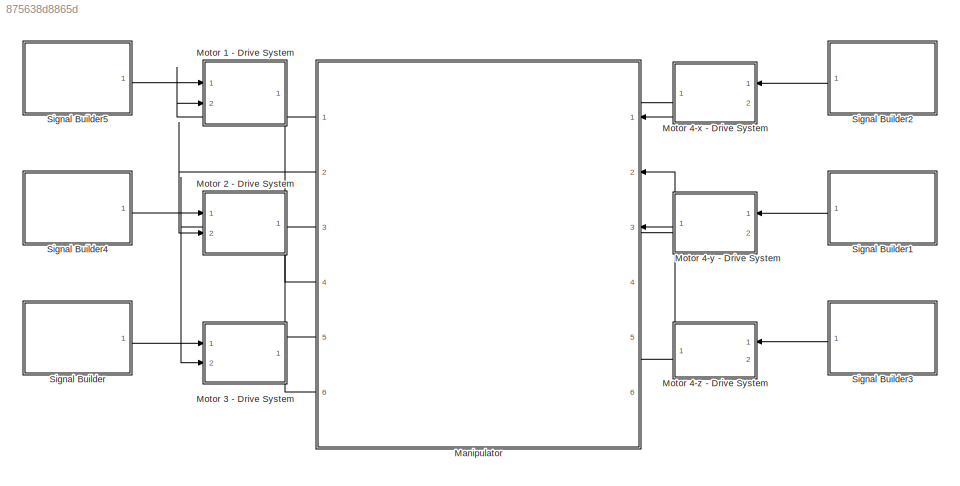
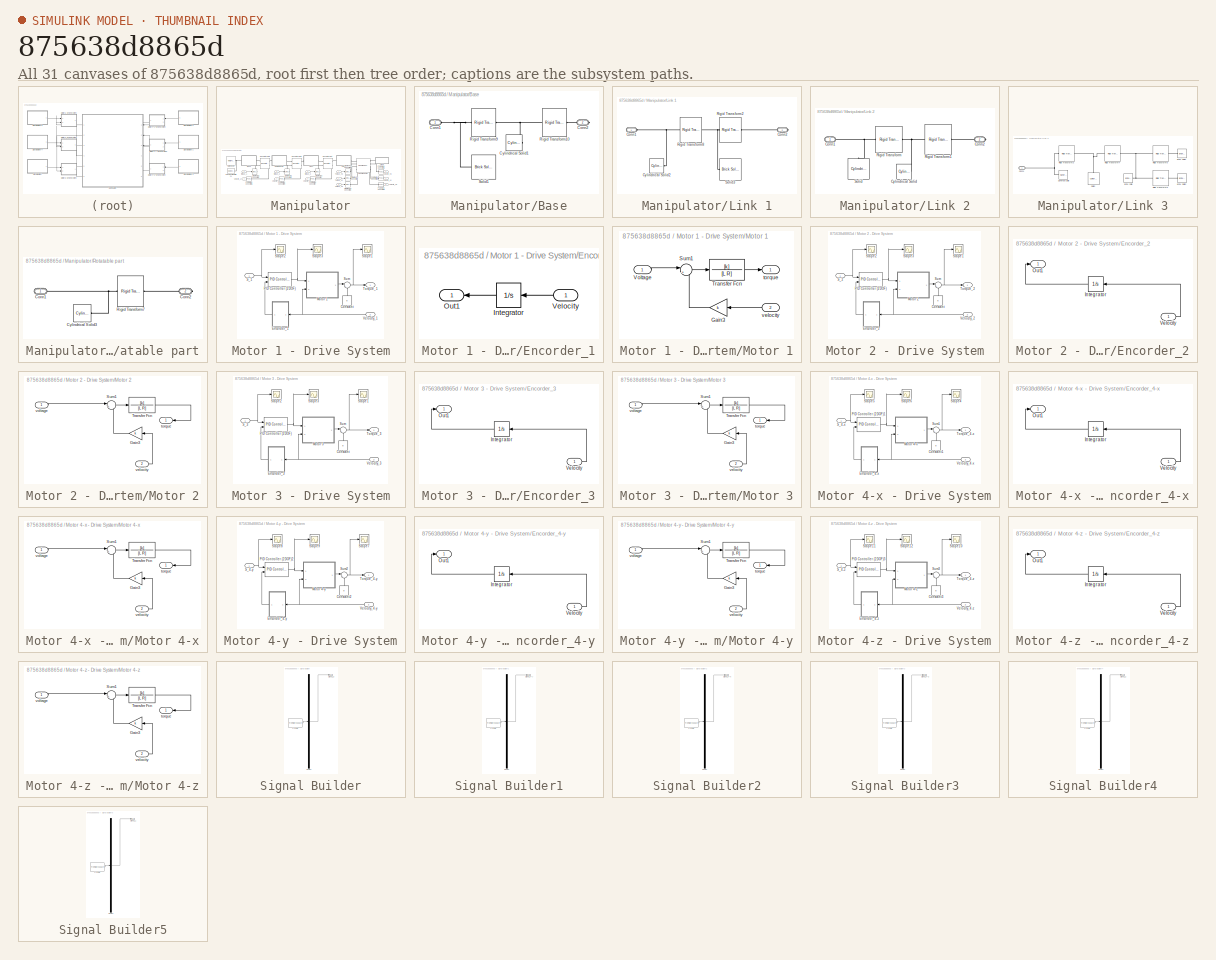
[diagram: thumbnail index - all 31 canvases of the model, root first then tree order]
MODEL slx_875638d8865d
KIND model
CONFIG AbsTol = auto
CONFIG EnableMultiTasking = on
CONFIG FixedStep = auto
CONFIG MaxStep = auto
CONFIG MinStep = auto
CONFIG RelTol = 1e-3
CONFIG SampleTimeConstraint = Unconstrained
CONFIG SolverName = ode45
CONFIG StartTime = 0.0
CONFIG StopTime = 10
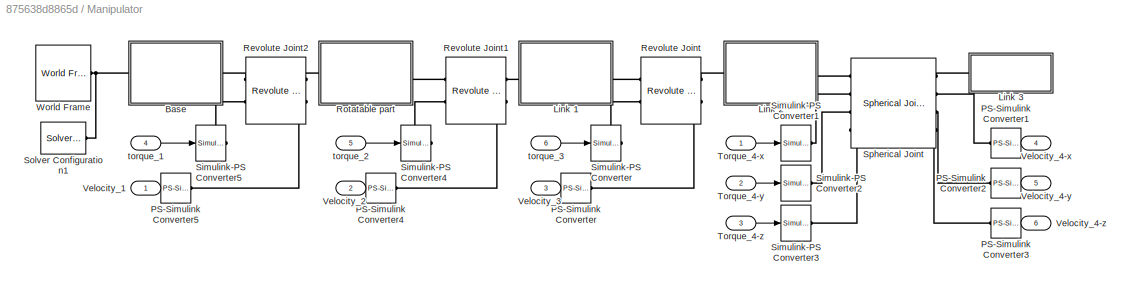
BLOCK [SubSystem] Manipulator
  NameLocation = top
  PortSchema = {"entries":[{"content":{"sides":[{"content":{"connectorIds":["In1","Out4","In2","Out5","In3","Out6"]},"type":"ConnectorPlacement.EquallySpacedRectSide","uuid":"6cf121eb-4254-4362-a991-8289397ada10"},{"content":{"connectorIds":["In4","Out1","In5","Out2","In6","Out3"],"side":"RIGHT"},"type":"ConnectorPlacement.EquallySpacedRectSide","uuid":"0b76b019-2818-4095-9175-a5632ab5a91b"},{"content":{"connect...<+305ch>
  Ports = [6, 6]
  RequestExecContextInheritance = off
BLOCK [SubSystem] Manipulator/Base
  Ports = [0, 0, 0, 0, 0, 1, 1]
  RequestExecContextInheritance = off
BLOCK [PMIOPort] Manipulator/Base/Conn1
  Side = Left
BLOCK [PMIOPort] Manipulator/Base/Conn2
  Port = 2
  Side = Right
BLOCK [Reference] Manipulator/Base/Cylindrical Solid1  REF=sm_lib/Body Elements/Cylindrical Solid
  Ports = [0, 0, 0, 0, 0, 0, 1]
  SourceBlock = sm_lib/Body Elements/Cylindrical Solid
  SourceProductBaseCode = MS
  SourceType = Cylindrical Solid
BLOCK [Reference] Manipulator/Base/Rigid  Transform10  REF=sm_lib/Frames and
Transforms/Rigid
Transform
  Ports = [0, 0, 0, 0, 0, 1, 1]
  SourceBlock = sm_lib/Frames and\nTransforms/Rigid\nTransform
  SourceProductBaseCode = MS
  SourceType = Rigid\nTransform
BLOCK [Reference] Manipulator/Base/Rigid  Transform9  REF=sm_lib/Frames and
Transforms/Rigid
Transform
  Ports = [0, 0, 0, 0, 0, 1, 1]
  SourceBlock = sm_lib/Frames and\nTransforms/Rigid\nTransform
  SourceProductBaseCode = MS
  SourceType = Rigid\nTransform
BLOCK [Reference] Manipulator/Base/Solid1  REF=sm_lib/Body Elements/Brick Solid
  NameLocation = top
  Ports = [0, 0, 0, 0, 0, 0, 1]
  SourceBlock = sm_lib/Body Elements/Brick Solid
  SourceProductBaseCode = MS
  SourceType = Brick Solid
BLOCK [SubSystem] Manipulator/Link 1
  Ports = [0, 0, 0, 0, 0, 1, 1]
  RequestExecContextInheritance = off
BLOCK [PMIOPort] Manipulator/Link 1/Conn1
  Side = Left
BLOCK [PMIOPort] Manipulator/Link 1/Conn2
  Port = 2
  Side = Right
BLOCK [Reference] Manipulator/Link 1/Cylindrical Solid2  REF=sm_lib/Body Elements/Cylindrical Solid
  Ports = [0, 0, 0, 0, 0, 0, 1]
  SourceBlock = sm_lib/Body Elements/Cylindrical Solid
  SourceProductBaseCode = MS
  SourceType = Cylindrical Solid
BLOCK [Reference] Manipulator/Link 1/Rigid  Transform2  REF=sm_lib/Frames and
Transforms/Rigid
Transform
  Ports = [0, 0, 0, 0, 0, 1, 1]
  SourceBlock = sm_lib/Frames and\nTransforms/Rigid\nTransform
  SourceProductBaseCode = MS
  SourceType = Rigid\nTransform
BLOCK [Reference] Manipulator/Link 1/Rigid  Transform8  REF=sm_lib/Frames and
Transforms/Rigid
Transform
  Ports = [0, 0, 0, 0, 0, 1, 1]
  SourceBlock = sm_lib/Frames and\nTransforms/Rigid\nTransform
  SourceProductBaseCode = MS
  SourceType = Rigid\nTransform
BLOCK [Reference] Manipulator/Link 1/Solid3  REF=sm_lib/Body Elements/Brick Solid
  NameLocation = top
  Ports = [0, 0, 0, 0, 0, 0, 1]
  SourceBlock = sm_lib/Body Elements/Brick Solid
  SourceProductBaseCode = MS
  SourceType = Brick Solid
BLOCK [SubSystem] Manipulator/Link 2
  Ports = [0, 0, 0, 0, 0, 1, 1]
  RequestExecContextInheritance = off
BLOCK [PMIOPort] Manipulator/Link 2/Conn1
  Side = Left
BLOCK [PMIOPort] Manipulator/Link 2/Conn2
  Port = 2
  Side = Right
BLOCK [Reference] Manipulator/Link 2/Cylindrical Solid  REF=sm_lib/Body Elements/Cylindrical Solid
  Ports = [0, 0, 0, 0, 0, 0, 1]
  SourceBlock = sm_lib/Body Elements/Cylindrical Solid
  SourceProductBaseCode = MS
  SourceType = Cylindrical Solid
BLOCK [Reference] Manipulator/Link 2/Rigid  Transform  REF=sm_lib/Frames and
Transforms/Rigid
Transform
  Ports = [0, 0, 0, 0, 0, 1, 1]
  SourceBlock = sm_lib/Frames and\nTransforms/Rigid\nTransform
  SourceProductBaseCode = MS
  SourceType = Rigid\nTransform
BLOCK [Reference] Manipulator/Link 2/Rigid  Transform1  REF=sm_lib/Frames and
Transforms/Rigid
Transform
  Ports = [0, 0, 0, 0, 0, 1, 1]
  SourceBlock = sm_lib/Frames and\nTransforms/Rigid\nTransform
  SourceProductBaseCode = MS
  SourceType = Rigid\nTransform
BLOCK [Reference] Manipulator/Link 2/Solid  REF=sm_lib/Body Elements/Cylindrical Solid
  NameLocation = right
  Ports = [0, 0, 0, 0, 0, 0, 1]
  SourceBlock = sm_lib/Body Elements/Cylindrical Solid
  SourceProductBaseCode = MS
  SourceType = Cylindrical Solid
BLOCK [SubSystem] Manipulator/Link 3
  Ports = [0, 0, 0, 0, 0, 1]
  RequestExecContextInheritance = off
BLOCK [Reference] Manipulator/Link 3/Brick Solid  REF=sm_lib/Body Elements/Brick Solid
  Ports = [0, 0, 0, 0, 0, 0, 1]
  SourceBlock = sm_lib/Body Elements/Brick Solid
  SourceProductBaseCode = MS
  SourceType = Brick Solid
BLOCK [Reference] Manipulator/Link 3/Brick Solid1  REF=sm_lib/Body Elements/Brick Solid
  Ports = [0, 0, 0, 0, 0, 0, 1]
  SourceBlock = sm_lib/Body Elements/Brick Solid
  SourceProductBaseCode = MS
  SourceType = Brick Solid
BLOCK [Reference] Manipulator/Link 3/Brick Solid2  REF=sm_lib/Body Elements/Brick Solid
  Ports = [0, 0, 0, 0, 0, 0, 1]
  SourceBlock = sm_lib/Body Elements/Brick Solid
  SourceProductBaseCode = MS
  SourceType = Brick Solid
BLOCK [PMIOPort] Manipulator/Link 3/Conn1
  Side = Left
BLOCK [Reference] Manipulator/Link 3/Rigid  Transform3  REF=sm_lib/Frames and
Transforms/Rigid
Transform
  Ports = [0, 0, 0, 0, 0, 1, 1]
  SourceBlock = sm_lib/Frames and\nTransforms/Rigid\nTransform
  SourceProductBaseCode = MS
  SourceType = Rigid\nTransform
BLOCK [Reference] Manipulator/Link 3/Rigid  Transform4  REF=sm_lib/Frames and
Transforms/Rigid
Transform
  Ports = [0, 0, 0, 0, 0, 1, 1]
  SourceBlock = sm_lib/Frames and\nTransforms/Rigid\nTransform
  SourceProductBaseCode = MS
  SourceType = Rigid\nTransform
BLOCK [Reference] Manipulator/Link 3/Rigid  Transform5  REF=sm_lib/Frames and
Transforms/Rigid
Transform
  Ports = [0, 0, 0, 0, 0, 1, 1]
  SourceBlock = sm_lib/Frames and\nTransforms/Rigid\nTransform
  SourceProductBaseCode = MS
  SourceType = Rigid\nTransform
BLOCK [Reference] Manipulator/Link 3/Rigid  Transform6  REF=sm_lib/Frames and
Transforms/Rigid
Transform
  Ports = [0, 0, 0, 0, 0, 1, 1]
  SourceBlock = sm_lib/Frames and\nTransforms/Rigid\nTransform
  SourceProductBaseCode = MS
  SourceType = Rigid\nTransform
BLOCK [Reference] Manipulator/Link 3/Solid2  REF=sm_lib/Body Elements/Cylindrical Solid
  NameLocation = right
  Ports = [0, 0, 0, 0, 0, 0, 1]
  SourceBlock = sm_lib/Body Elements/Cylindrical Solid
  SourceProductBaseCode = MS
  SourceType = Cylindrical Solid
BLOCK [Reference] Manipulator/Link 3/Spherical Solid  REF=sm_lib/Body Elements/Spherical Solid
  Ports = [0, 0, 0, 0, 0, 0, 1]
  SourceBlock = sm_lib/Body Elements/Spherical Solid
  SourceProductBaseCode = MS
  SourceType = Spherical Solid
BLOCK [Reference] Manipulator/PS-Simulink Converter  REF=nesl_utility/PS-Simulink
Converter
  Ports = [0, 1, 0, 0, 0, 1]
  SourceBlock = nesl_utility/PS-Simulink\nConverter
  SourceProductBaseCode = PW,SS
  SourceType = PS-Simulink\nConverter
BLOCK [Reference] Manipulator/PS-Simulink Converter1  REF=nesl_utility/PS-Simulink
Converter
  Ports = [0, 1, 0, 0, 0, 1]
  SourceBlock = nesl_utility/PS-Simulink\nConverter
  SourceProductBaseCode = PW,SS
  SourceType = PS-Simulink\nConverter
BLOCK [Reference] Manipulator/PS-Simulink Converter2  REF=nesl_utility/PS-Simulink
Converter
  Ports = [0, 1, 0, 0, 0, 1]
  SourceBlock = nesl_utility/PS-Simulink\nConverter
  SourceProductBaseCode = PW,SS
  SourceType = PS-Simulink\nConverter
BLOCK [Reference] Manipulator/PS-Simulink Converter3  REF=nesl_utility/PS-Simulink
Converter
  Ports = [0, 1, 0, 0, 0, 1]
  SourceBlock = nesl_utility/PS-Simulink\nConverter
  SourceProductBaseCode = PW,SS
  SourceType = PS-Simulink\nConverter
BLOCK [Reference] Manipulator/PS-Simulink Converter4  REF=nesl_utility/PS-Simulink
Converter
  Ports = [0, 1, 0, 0, 0, 1]
  SourceBlock = nesl_utility/PS-Simulink\nConverter
  SourceProductBaseCode = PW,SS
  SourceType = PS-Simulink\nConverter
BLOCK [Reference] Manipulator/PS-Simulink Converter5  REF=nesl_utility/PS-Simulink
Converter
  Ports = [0, 1, 0, 0, 0, 1]
  SourceBlock = nesl_utility/PS-Simulink\nConverter
  SourceProductBaseCode = PW,SS
  SourceType = PS-Simulink\nConverter
BLOCK [Reference] Manipulator/Revolute Joint  REF=sm_lib/Joints/Revolute Joint
  Ports = [0, 0, 0, 0, 0, 2, 2]
  SourceBlock = sm_lib/Joints/Revolute Joint
  SourceProductBaseCode = MS
  SourceType = Revolute Joint
BLOCK [Reference] Manipulator/Revolute Joint1  REF=sm_lib/Joints/Revolute Joint
  Ports = [0, 0, 0, 0, 0, 2, 2]
  SourceBlock = sm_lib/Joints/Revolute Joint
  SourceProductBaseCode = MS
  SourceType = Revolute Joint
BLOCK [Reference] Manipulator/Revolute Joint2  REF=sm_lib/Joints/Revolute Joint
  Ports = [0, 0, 0, 0, 0, 2, 2]
  SourceBlock = sm_lib/Joints/Revolute Joint
  SourceProductBaseCode = MS
  SourceType = Revolute Joint
BLOCK [SubSystem] Manipulator/Rotatable part
  Ports = [0, 0, 0, 0, 0, 1, 1]
  RequestExecContextInheritance = off
BLOCK [PMIOPort] Manipulator/Rotatable part/Conn1
  Side = Left
BLOCK [PMIOPort] Manipulator/Rotatable part/Conn2
  Port = 2
  Side = Right
BLOCK [Reference] Manipulator/Rotatable part/Cylindrical Solid3  REF=sm_lib/Body Elements/Cylindrical Solid
  Ports = [0, 0, 0, 0, 0, 0, 1]
  SourceBlock = sm_lib/Body Elements/Cylindrical Solid
  SourceProductBaseCode = MS
  SourceType = Cylindrical Solid
BLOCK [Reference] Manipulator/Rotatable part/Rigid  Transform7  REF=sm_lib/Frames and
Transforms/Rigid
Transform
  Ports = [0, 0, 0, 0, 0, 1, 1]
  SourceBlock = sm_lib/Frames and\nTransforms/Rigid\nTransform
  SourceProductBaseCode = MS
  SourceType = Rigid\nTransform
BLOCK [Reference] Manipulator/Simulink-PS Converter  REF=nesl_utility/Simulink-PS
Converter
  Ports = [1, 0, 0, 0, 0, 0, 1]
  SourceBlock = nesl_utility/Simulink-PS\nConverter
  SourceProductBaseCode = PW,SS
  SourceType = Simulink-PS\nConverter
BLOCK [Reference] Manipulator/Simulink-PS Converter1  REF=nesl_utility/Simulink-PS
Converter
  Ports = [1, 0, 0, 0, 0, 0, 1]
  SourceBlock = nesl_utility/Simulink-PS\nConverter
  SourceProductBaseCode = PW,SS
  SourceType = Simulink-PS\nConverter
BLOCK [Reference] Manipulator/Simulink-PS Converter2  REF=nesl_utility/Simulink-PS
Converter
  Ports = [1, 0, 0, 0, 0, 0, 1]
  SourceBlock = nesl_utility/Simulink-PS\nConverter
  SourceProductBaseCode = PW,SS
  SourceType = Simulink-PS\nConverter
BLOCK [Reference] Manipulator/Simulink-PS Converter3  REF=nesl_utility/Simulink-PS
Converter
  Ports = [1, 0, 0, 0, 0, 0, 1]
  SourceBlock = nesl_utility/Simulink-PS\nConverter
  SourceProductBaseCode = PW,SS
  SourceType = Simulink-PS\nConverter
BLOCK [Reference] Manipulator/Simulink-PS Converter4  REF=nesl_utility/Simulink-PS
Converter
  Ports = [1, 0, 0, 0, 0, 0, 1]
  SourceBlock = nesl_utility/Simulink-PS\nConverter
  SourceProductBaseCode = PW,SS
  SourceType = Simulink-PS\nConverter
BLOCK [Reference] Manipulator/Simulink-PS Converter5  REF=nesl_utility/Simulink-PS
Converter
  Ports = [1, 0, 0, 0, 0, 0, 1]
  SourceBlock = nesl_utility/Simulink-PS\nConverter
  SourceProductBaseCode = PW,SS
  SourceType = Simulink-PS\nConverter
BLOCK [Reference] Manipulator/Solver Configuration1  REF=nesl_utility/Solver
Configuration
  Ports = [0, 0, 0, 0, 0, 0, 1]
  SourceBlock = nesl_utility/Solver\nConfiguration
  SourceProductBaseCode = PW,SS
  SourceType = Solver\nConfiguration
BLOCK [Reference] Manipulator/Spherical Joint  REF=sm_lib/Joints/Spherical
Joint
  Ports = [0, 0, 0, 0, 0, 4, 4]
  SourceBlock = sm_lib/Joints/Spherical\nJoint
  SourceProductBaseCode = MS
  SourceType = Spherical\nJoint
BLOCK [Inport] Manipulator/Torque_4-x
BLOCK [Inport] Manipulator/Torque_4-y
  Port = 2
BLOCK [Inport] Manipulator/Torque_4-z
  Port = 3
BLOCK [Outport] Manipulator/Velocity_1
  VectorParamsAs1DForOutWhenUnconnected = off
BLOCK [Outport] Manipulator/Velocity_2
  Port = 2
  VectorParamsAs1DForOutWhenUnconnected = off
BLOCK [Outport] Manipulator/Velocity_3
  Port = 3
  VectorParamsAs1DForOutWhenUnconnected = off
BLOCK [Outport] Manipulator/Velocity_4-x
  Port = 4
  VectorParamsAs1DForOutWhenUnconnected = off
BLOCK [Outport] Manipulator/Velocity_4-y
  Port = 5
  VectorParamsAs1DForOutWhenUnconnected = off
BLOCK [Outport] Manipulator/Velocity_4-z
  Port = 6
  VectorParamsAs1DForOutWhenUnconnected = off
BLOCK [Reference] Manipulator/World Frame  REF=sm_lib/Frames and
Transforms/World Frame
  Ports = [0, 0, 0, 0, 0, 0, 1]
  SourceBlock = sm_lib/Frames and\nTransforms/World Frame
  SourceProductBaseCode = MS
  SourceType = World Frame
BLOCK [Inport] Manipulator/torque_1
  Port = 4
BLOCK [Inport] Manipulator/torque_2
  Port = 5
BLOCK [Inport] Manipulator/torque_3
  Port = 6
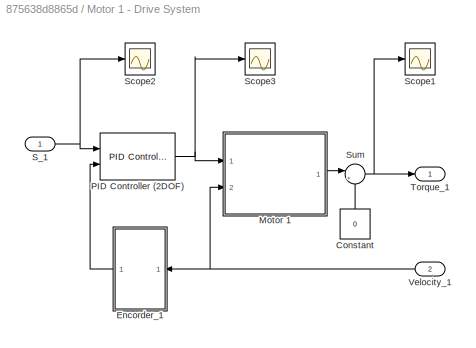
BLOCK [SubSystem] Motor 1 - Drive System
  Ports = [2, 1]
  RequestExecContextInheritance = off
BLOCK [Constant] Motor 1 - Drive System/Constant
  NameLocation = right
  Value = 0
BLOCK [SubSystem] Motor 1 - Drive System/Encorder_1
  Ports = [1, 1]
  RequestExecContextInheritance = off
BLOCK [Integrator] Motor 1 - Drive System/Encorder_1/Integrator
  Ports = [1, 1]
BLOCK [Outport] Motor 1 - Drive System/Encorder_1/Out1
  VectorParamsAs1DForOutWhenUnconnected = off
BLOCK [Inport] Motor 1 - Drive System/Encorder_1/Velocity
BLOCK [SubSystem] Motor 1 - Drive System/Motor 1
  Ports = [2, 1]
  RequestExecContextInheritance = off
BLOCK [Gain] Motor 1 - Drive System/Motor 1/Gain3
  Gain = k
BLOCK [Sum] Motor 1 - Drive System/Motor 1/Sum1
  Inputs = |+-
  Ports = [2, 1]
BLOCK [TransferFcn] Motor 1 - Drive System/Motor 1/Transfer Fcn
  Denominator = [L R]
  Numerator = [k]
BLOCK [Inport] Motor 1 - Drive System/Motor 1/Voltage
BLOCK [Outport] Motor 1 - Drive System/Motor 1/torque
  VectorParamsAs1DForOutWhenUnconnected = off
BLOCK [Inport] Motor 1 - Drive System/Motor 1/velocity
  Port = 2
BLOCK [Reference] Motor 1 - Drive System/PID Controller (2DOF)  REF=pid_lib/PID Controller (2DOF)
  Ports = [2, 1]
  SourceBlock = pid_lib/PID Controller (2DOF)
  SourceProductBaseCode = SL
  SourceType = PID 2dof
BLOCK [Inport] Motor 1 - Drive System/S_1
BLOCK [Scope] Motor 1 - Drive System/Scope1
  Floating = off
  NumInputPorts = 1
  Ports = [1]
  ScopeSpecificationString = Simulink.scopes.TimeScopeBlockCfg('CurrentConfiguration', extmgr.ConfigurationSet(extmgr.Configuration('Core','General UI',true),extmgr.Configuration('Core','Source UI',true),extmgr.Configuration('Sources','WiredSimulink',true,'DataLoggingVariableName','ScopeData1','DataLoggingSaveFormat','StructureWithTime','DataLoggingLimitDataPoints',true,'DataLoggingDecimation','1','DataLoggingDecimateData',tr...<+1699ch>  <repeated x3 — deduplicated; at blocks: Scope1>
BLOCK [Scope] Motor 1 - Drive System/Scope2
  Floating = off
  NumInputPorts = 1
  Ports = [1]
  ScopeSpecificationString = Simulink.scopes.TimeScopeBlockCfg('CurrentConfiguration', extmgr.ConfigurationSet(extmgr.Configuration('Core','General UI',true),extmgr.Configuration('Core','Source UI',true),extmgr.Configuration('Sources','WiredSimulink',true,'DataLoggingSaveFormat','StructureWithTime','DataLoggingLimitDataPoints',true,'DataLoggingDecimation','1','DataLoggingDecimateData',true),extmgr.Configuration('Visuals','Tim...<+1658ch>  <repeated x3 — deduplicated; at blocks: Scope2>
BLOCK [Scope] Motor 1 - Drive System/Scope3
  Floating = off
  NumInputPorts = 1
  Ports = [1]
  ScopeSpecificationString = Simulink.scopes.TimeScopeBlockCfg('CurrentConfiguration', extmgr.ConfigurationSet(extmgr.Configuration('Core','General UI',true),extmgr.Configuration('Core','Source UI',true),extmgr.Configuration('Sources','WiredSimulink',true,'DataLoggingVariableName','ScopeData3','DataLoggingSaveFormat','StructureWithTime','DataLoggingLimitDataPoints',true,'DataLoggingDecimation','1','DataLoggingDecimateData',tr...<+1759ch>
BLOCK [Sum] Motor 1 - Drive System/Sum
  Inputs = |+-
  Ports = [2, 1]
BLOCK [Outport] Motor 1 - Drive System/Torque_1
BLOCK [Inport] Motor 1 - Drive System/Velocity_1
  Port = 2
BLOCK [SubSystem] Motor 2 - Drive System
  Ports = [2, 1]
  RequestExecContextInheritance = off
BLOCK [Constant] Motor 2 - Drive System/Constant
  NameLocation = right
  Value = 0
BLOCK [SubSystem] Motor 2 - Drive System/Encorder_2
  Ports = [1, 1]
  RequestExecContextInheritance = off
BLOCK [Integrator] Motor 2 - Drive System/Encorder_2/Integrator
  Ports = [1, 1]
BLOCK [Outport] Motor 2 - Drive System/Encorder_2/Out1
  VectorParamsAs1DForOutWhenUnconnected = off
BLOCK [Inport] Motor 2 - Drive System/Encorder_2/Velocity
BLOCK [SubSystem] Motor 2 - Drive System/Motor 2
  Ports = [2, 1]
  RequestExecContextInheritance = off
BLOCK [Gain] Motor 2 - Drive System/Motor 2/Gain3
  Gain = k
BLOCK [Sum] Motor 2 - Drive System/Motor 2/Sum1
  Inputs = |+-
  Ports = [2, 1]
BLOCK [TransferFcn] Motor 2 - Drive System/Motor 2/Transfer Fcn
  Denominator = [L R]
  Numerator = [k]
BLOCK [Outport] Motor 2 - Drive System/Motor 2/torque
  VectorParamsAs1DForOutWhenUnconnected = off
BLOCK [Inport] Motor 2 - Drive System/Motor 2/velocity
  Port = 2
BLOCK [Inport] Motor 2 - Drive System/Motor 2/voltage
BLOCK [Reference] Motor 2 - Drive System/PID Controller (2DOF)  REF=pid_lib/PID Controller (2DOF)
  Ports = [2, 1]
  SourceBlock = pid_lib/PID Controller (2DOF)
  SourceProductBaseCode = SL
  SourceType = PID 2dof
BLOCK [Inport] Motor 2 - Drive System/S_2
BLOCK [Scope] Motor 2 - Drive System/Scope1
  Floating = off
  NumInputPorts = 1
  Ports = [1]
BLOCK [Scope] Motor 2 - Drive System/Scope2
  Floating = off
  NumInputPorts = 1
  Ports = [1]
BLOCK [Scope] Motor 2 - Drive System/Scope3
  Floating = off
  NumInputPorts = 1
  Ports = [1]
  ScopeSpecificationString = Simulink.scopes.TimeScopeBlockCfg('CurrentConfiguration', extmgr.ConfigurationSet(extmgr.Configuration('Core','General UI',true),extmgr.Configuration('Core','Source UI',true),extmgr.Configuration('Sources','WiredSimulink',true,'DataLoggingVariableName','ScopeData3','DataLoggingSaveFormat','StructureWithTime','DataLoggingLimitDataPoints',true,'DataLoggingDecimation','1','DataLoggingDecimateData',tr...<+1719ch>
BLOCK [Sum] Motor 2 - Drive System/Sum
  Inputs = |+-
  Ports = [2, 1]
BLOCK [Outport] Motor 2 - Drive System/Torque_2
BLOCK [Inport] Motor 2 - Drive System/Velocity_2
  Port = 2
BLOCK [SubSystem] Motor 3 - Drive System
  Ports = [2, 1]
  RequestExecContextInheritance = off
BLOCK [Constant] Motor 3 - Drive System/Constant
  NameLocation = right
  Value = 0
BLOCK [SubSystem] Motor 3 - Drive System/Encorder_3
  Ports = [1, 1]
  RequestExecContextInheritance = off
BLOCK [Integrator] Motor 3 - Drive System/Encorder_3/Integrator
  Ports = [1, 1]
BLOCK [Outport] Motor 3 - Drive System/Encorder_3/Out1
  VectorParamsAs1DForOutWhenUnconnected = off
BLOCK [Inport] Motor 3 - Drive System/Encorder_3/Velocity
BLOCK [SubSystem] Motor 3 - Drive System/Motor 3
  Ports = [2, 1]
  RequestExecContextInheritance = off
BLOCK [Gain] Motor 3 - Drive System/Motor 3/Gain3
  Gain = k
BLOCK [Sum] Motor 3 - Drive System/Motor 3/Sum1
  Inputs = |+-
  Ports = [2, 1]
BLOCK [TransferFcn] Motor 3 - Drive System/Motor 3/Transfer Fcn
  Denominator = [L R]
  Numerator = [k]
BLOCK [Outport] Motor 3 - Drive System/Motor 3/torque
  VectorParamsAs1DForOutWhenUnconnected = off
BLOCK [Inport] Motor 3 - Drive System/Motor 3/velocity
  Port = 2
BLOCK [Inport] Motor 3 - Drive System/Motor 3/voltage
BLOCK [Reference] Motor 3 - Drive System/PID Controller (2DOF)  REF=pid_lib/PID Controller (2DOF)
  Ports = [2, 1]
  SourceBlock = pid_lib/PID Controller (2DOF)
  SourceProductBaseCode = SL
  SourceType = PID 2dof
BLOCK [Inport] Motor 3 - Drive System/S_3
BLOCK [Scope] Motor 3 - Drive System/Scope1
  Floating = off
  NumInputPorts = 1
  Ports = [1]
BLOCK [Scope] Motor 3 - Drive System/Scope2
  Floating = off
  NumInputPorts = 1
  Ports = [1]
BLOCK [Scope] Motor 3 - Drive System/Scope3
  Floating = off
  NumInputPorts = 1
  Ports = [1]
  ScopeSpecificationString = Simulink.scopes.TimeScopeBlockCfg('CurrentConfiguration', extmgr.ConfigurationSet(extmgr.Configuration('Core','General UI',true),extmgr.Configuration('Core','Source UI',true),extmgr.Configuration('Sources','WiredSimulink',true,'DataLoggingVariableName','ScopeData3','DataLoggingSaveFormat','StructureWithTime','DataLoggingLimitDataPoints',true,'DataLoggingDecimation','1','DataLoggingDecimateData',tr...<+1719ch>
BLOCK [Sum] Motor 3 - Drive System/Sum
  Inputs = |+-
  Ports = [2, 1]
BLOCK [Outport] Motor 3 - Drive System/Torque_3
BLOCK [Inport] Motor 3 - Drive System/Velocity_3
  Port = 2
BLOCK [SubSystem] Motor 4-x - Drive System
  Ports = [2, 1]
  RequestExecContextInheritance = off
BLOCK [Constant] Motor 4-x - Drive System/Constant1
  NameLocation = right
  Value = 0
BLOCK [SubSystem] Motor 4-x - Drive System/Encorder_4-x
  Ports = [1, 1]
  RequestExecContextInheritance = off
BLOCK [Integrator] Motor 4-x - Drive System/Encorder_4-x/Integrator
  Ports = [1, 1]
BLOCK [Outport] Motor 4-x - Drive System/Encorder_4-x/Out1
  VectorParamsAs1DForOutWhenUnconnected = off
BLOCK [Inport] Motor 4-x - Drive System/Encorder_4-x/Velocity
BLOCK [SubSystem] Motor 4-x - Drive System/Motor 4-x
  Ports = [2, 1]
  RequestExecContextInheritance = off
BLOCK [Gain] Motor 4-x - Drive System/Motor 4-x/Gain3
  Gain = k
BLOCK [Sum] Motor 4-x - Drive System/Motor 4-x/Sum1
  Inputs = |+-
  Ports = [2, 1]
BLOCK [TransferFcn] Motor 4-x - Drive System/Motor 4-x/Transfer Fcn
  Denominator = [L R]
  Numerator = [k]
BLOCK [Outport] Motor 4-x - Drive System/Motor 4-x/torque
  VectorParamsAs1DForOutWhenUnconnected = off
BLOCK [Inport] Motor 4-x - Drive System/Motor 4-x/velocity
  Port = 2
BLOCK [Inport] Motor 4-x - Drive System/Motor 4-x/voltage
BLOCK [Reference] Motor 4-x - Drive System/PID Controller (2DOF)1  REF=pid_lib/PID Controller (2DOF)
  Ports = [2, 1]
  SourceBlock = pid_lib/PID Controller (2DOF)
  SourceProductBaseCode = SL
  SourceType = PID 2dof
BLOCK [Inport] Motor 4-x - Drive System/S_4-x
BLOCK [Scope] Motor 4-x - Drive System/Scope4
  Floating = off
  NumInputPorts = 1
  Ports = [1]
  ScopeSpecificationString = Simulink.scopes.TimeScopeBlockCfg('CurrentConfiguration', extmgr.ConfigurationSet(extmgr.Configuration('Core','General UI',true),extmgr.Configuration('Core','Source UI',true),extmgr.Configuration('Sources','WiredSimulink',true,'DataLoggingVariableName','ScopeData1','DataLoggingSaveFormat','StructureWithTime','DataLoggingLimitDataPoints',true,'DataLoggingDecimation','1','DataLoggingDecimateData',tr...<+1679ch>
BLOCK [Scope] Motor 4-x - Drive System/Scope5
  Floating = off
  NumInputPorts = 1
  Ports = [1]
  ScopeSpecificationString = Simulink.scopes.TimeScopeBlockCfg('CurrentConfiguration', extmgr.ConfigurationSet(extmgr.Configuration('Core','General UI',true),extmgr.Configuration('Core','Source UI',true),extmgr.Configuration('Sources','WiredSimulink',true,'DataLoggingSaveFormat','StructureWithTime','DataLoggingLimitDataPoints',true,'DataLoggingDecimation','1','DataLoggingDecimateData',true,'DataLoggingVariableName','ScopeData...<+1686ch>  <repeated x3 — deduplicated; at blocks: Scope5, Scope8, Scope11>
BLOCK [Scope] Motor 4-x - Drive System/Scope6
  Floating = off
  NumInputPorts = 1
  Ports = [1]
  ScopeSpecificationString = Simulink.scopes.TimeScopeBlockCfg('CurrentConfiguration', extmgr.ConfigurationSet(extmgr.Configuration('Core','General UI',true),extmgr.Configuration('Core','Source UI',true),extmgr.Configuration('Sources','WiredSimulink',true,'DataLoggingVariableName','ScopeData3','DataLoggingSaveFormat','StructureWithTime','DataLoggingLimitDataPoints',true,'DataLoggingDecimation','1','DataLoggingDecimateData',tr...<+1697ch>
BLOCK [Sum] Motor 4-x - Drive System/Sum1
  Inputs = |+-
  Ports = [2, 1]
BLOCK [Outport] Motor 4-x - Drive System/Torque_4-x
BLOCK [Inport] Motor 4-x - Drive System/Velocity_4-x
  Port = 2
BLOCK [SubSystem] Motor 4-y - Drive System
  Ports = [2, 1]
  RequestExecContextInheritance = off
BLOCK [Constant] Motor 4-y - Drive System/Constant2
  NameLocation = right
  Value = 0
BLOCK [SubSystem] Motor 4-y - Drive System/Encorder_4-y
  Ports = [1, 1]
  RequestExecContextInheritance = off
BLOCK [Integrator] Motor 4-y - Drive System/Encorder_4-y/Integrator
  Ports = [1, 1]
BLOCK [Outport] Motor 4-y - Drive System/Encorder_4-y/Out1
  VectorParamsAs1DForOutWhenUnconnected = off
BLOCK [Inport] Motor 4-y - Drive System/Encorder_4-y/Velocity
BLOCK [SubSystem] Motor 4-y - Drive System/Motor 4-y
  Ports = [2, 1]
  RequestExecContextInheritance = off
BLOCK [Gain] Motor 4-y - Drive System/Motor 4-y/Gain3
  Gain = k
BLOCK [Sum] Motor 4-y - Drive System/Motor 4-y/Sum1
  Inputs = |+-
  Ports = [2, 1]
BLOCK [TransferFcn] Motor 4-y - Drive System/Motor 4-y/Transfer Fcn
  Denominator = [L R]
  Numerator = [k]
BLOCK [Outport] Motor 4-y - Drive System/Motor 4-y/torque
  VectorParamsAs1DForOutWhenUnconnected = off
BLOCK [Inport] Motor 4-y - Drive System/Motor 4-y/velocity
  Port = 2
BLOCK [Inport] Motor 4-y - Drive System/Motor 4-y/voltage
BLOCK [Reference] Motor 4-y - Drive System/PID Controller (2DOF)2  REF=pid_lib/PID Controller (2DOF)
  Ports = [2, 1]
  SourceBlock = pid_lib/PID Controller (2DOF)
  SourceProductBaseCode = SL
  SourceType = PID 2dof
BLOCK [Inport] Motor 4-y - Drive System/S_4-y
BLOCK [Scope] Motor 4-y - Drive System/Scope7
  Floating = off
  NumInputPorts = 1
  Ports = [1]
  ScopeSpecificationString = Simulink.scopes.TimeScopeBlockCfg('CurrentConfiguration', extmgr.ConfigurationSet(extmgr.Configuration('Core','General UI',true),extmgr.Configuration('Core','Source UI',true),extmgr.Configuration('Sources','WiredSimulink',true,'DataLoggingVariableName','ScopeData4','DataLoggingSaveFormat','StructureWithTime','DataLoggingLimitDataPoints',true,'DataLoggingDecimation','1','DataLoggingDecimateData',tr...<+1679ch>
BLOCK [Scope] Motor 4-y - Drive System/Scope8
  Floating = off
  NumInputPorts = 1
  Ports = [1]
BLOCK [Scope] Motor 4-y - Drive System/Scope9
  Floating = off
  NumInputPorts = 1
  Ports = [1]
  ScopeSpecificationString = Simulink.scopes.TimeScopeBlockCfg('CurrentConfiguration', extmgr.ConfigurationSet(extmgr.Configuration('Core','General UI',true),extmgr.Configuration('Core','Source UI',true),extmgr.Configuration('Sources','WiredSimulink',true,'DataLoggingVariableName','ScopeData6','DataLoggingSaveFormat','StructureWithTime','DataLoggingLimitDataPoints',true,'DataLoggingDecimation','1','DataLoggingDecimateData',tr...<+1697ch>
BLOCK [Sum] Motor 4-y - Drive System/Sum2
  Inputs = |+-
  Ports = [2, 1]
BLOCK [Outport] Motor 4-y - Drive System/Torque_4-y
BLOCK [Inport] Motor 4-y - Drive System/Velocity_4-y
  Port = 2
BLOCK [SubSystem] Motor 4-z - Drive System
  Ports = [2, 1]
  RequestExecContextInheritance = off
BLOCK [Constant] Motor 4-z - Drive System/Constant3
  NameLocation = right
  Value = 0
BLOCK [SubSystem] Motor 4-z - Drive System/Encorder_4-z
  Ports = [1, 1]
  RequestExecContextInheritance = off
BLOCK [Integrator] Motor 4-z - Drive System/Encorder_4-z/Integrator
  Ports = [1, 1]
BLOCK [Outport] Motor 4-z - Drive System/Encorder_4-z/Out1
  VectorParamsAs1DForOutWhenUnconnected = off
BLOCK [Inport] Motor 4-z - Drive System/Encorder_4-z/Velocity
BLOCK [SubSystem] Motor 4-z - Drive System/Motor 4-z
  Ports = [2, 1]
  RequestExecContextInheritance = off
BLOCK [Gain] Motor 4-z - Drive System/Motor 4-z/Gain3
  Gain = k
BLOCK [Sum] Motor 4-z - Drive System/Motor 4-z/Sum1
  Inputs = |+-
  Ports = [2, 1]
BLOCK [TransferFcn] Motor 4-z - Drive System/Motor 4-z/Transfer Fcn
  Denominator = [L R]
  Numerator = [k]
BLOCK [Outport] Motor 4-z - Drive System/Motor 4-z/torque
  VectorParamsAs1DForOutWhenUnconnected = off
BLOCK [Inport] Motor 4-z - Drive System/Motor 4-z/velocity
  Port = 2
BLOCK [Inport] Motor 4-z - Drive System/Motor 4-z/voltage
BLOCK [Reference] Motor 4-z - Drive System/PID Controller (2DOF)3  REF=pid_lib/PID Controller (2DOF)
  Ports = [2, 1]
  SourceBlock = pid_lib/PID Controller (2DOF)
  SourceProductBaseCode = SL
  SourceType = PID 2dof
BLOCK [Inport] Motor 4-z - Drive System/S_4-z
BLOCK [Scope] Motor 4-z - Drive System/Scope10
  Floating = off
  NumInputPorts = 1
  Ports = [1]
  ScopeSpecificationString = Simulink.scopes.TimeScopeBlockCfg('CurrentConfiguration', extmgr.ConfigurationSet(extmgr.Configuration('Core','General UI',true),extmgr.Configuration('Core','Source UI',true),extmgr.Configuration('Sources','WiredSimulink',true,'DataLoggingVariableName','ScopeData7','DataLoggingSaveFormat','StructureWithTime','DataLoggingLimitDataPoints',true,'DataLoggingDecimation','1','DataLoggingDecimateData',tr...<+1679ch>
BLOCK [Scope] Motor 4-z - Drive System/Scope11
  Floating = off
  NumInputPorts = 1
  Ports = [1]
BLOCK [Scope] Motor 4-z - Drive System/Scope12
  Floating = off
  NumInputPorts = 1
  Ports = [1]
  ScopeSpecificationString = Simulink.scopes.TimeScopeBlockCfg('CurrentConfiguration', extmgr.ConfigurationSet(extmgr.Configuration('Core','General UI',true),extmgr.Configuration('Core','Source UI',true),extmgr.Configuration('Sources','WiredSimulink',true,'DataLoggingVariableName','ScopeData9','DataLoggingSaveFormat','StructureWithTime','DataLoggingLimitDataPoints',true,'DataLoggingDecimation','1','DataLoggingDecimateData',tr...<+1697ch>
BLOCK [Sum] Motor 4-z - Drive System/Sum3
  Inputs = |+-
  Ports = [2, 1]
BLOCK [Outport] Motor 4-z - Drive System/Torque_4-z
BLOCK [Inport] Motor 4-z - Drive System/Velocity_4-z
  Port = 2
BLOCK [SubSystem] Signal Builder
  ClipboardFcn = sigbuilder_block('clipboard');
  CloseFcn = sigbuilder_block('close');
  ContinueFcn = sigbuilder_block('continue');
  CopyFcn = sigbuilder_block('copy');
  DeleteFcn = sigbuilder_block('delete');
  LoadFcn = sigbuilder_block('load');
  MaskHideContents = on
  ModelCloseFcn = sigbuilder_block('modelClose');
  NameChangeFcn = sigbuilder_block('namechange');
  OpenFcn = sigbuilder_block('open',[0 0 1024.5 518.25 ]);
  PauseFcn = sigbuilder_block('pause');
  Ports = [0, 1]
  PreSaveFcn = sigbuilder_block('preSave');
  RequestExecContextInheritance = off
  StartFcn = sigbuilder_block('start');
  StopFcn = sigbuilder_block('stop');
  Tag = STV Subsys
BLOCK [Demux] Signal Builder/Demux
  DisplayOption = none
  Outputs = 1
  Ports = [1, 1]
  Tag = STV Demux
BLOCK [FromWorkspace] Signal Builder/FromWs
  Tag = STV FromWs
  VariableName = tuvar
BLOCK [Outport] Signal Builder/Signal_3
  Tag = STV Outport
  VectorParamsAs1DForOutWhenUnconnected = off
BLOCK [SubSystem] Signal Builder1
  ClipboardFcn = sigbuilder_block('clipboard');
  CloseFcn = sigbuilder_block('close');
  ContinueFcn = sigbuilder_block('continue');
  CopyFcn = sigbuilder_block('copy');
  DeleteFcn = sigbuilder_block('delete');
  LoadFcn = sigbuilder_block('load');
  MaskHideContents = on
  ModelCloseFcn = sigbuilder_block('modelClose');
  NameChangeFcn = sigbuilder_block('namechange');
  OpenFcn = sigbuilder_block('open',[0 0 1024.5 518.25 ]);
  PauseFcn = sigbuilder_block('pause');
  Ports = [0, 1]
  PreSaveFcn = sigbuilder_block('preSave');
  RequestExecContextInheritance = off
  StartFcn = sigbuilder_block('start');
  StopFcn = sigbuilder_block('stop');
  Tag = STV Subsys
BLOCK [Demux] Signal Builder1/Demux
  DisplayOption = none
  Outputs = 1
  Ports = [1, 1]
  Tag = STV Demux
BLOCK [FromWorkspace] Signal Builder1/FromWs
  Tag = STV FromWs
  VariableName = tuvar
BLOCK [Outport] Signal Builder1/Signal_4-y
  Tag = STV Outport
  VectorParamsAs1DForOutWhenUnconnected = off
BLOCK [SubSystem] Signal Builder2
  ClipboardFcn = sigbuilder_block('clipboard');
  CloseFcn = sigbuilder_block('close');
  ContinueFcn = sigbuilder_block('continue');
  CopyFcn = sigbuilder_block('copy');
  DeleteFcn = sigbuilder_block('delete');
  LoadFcn = sigbuilder_block('load');
  MaskHideContents = on
  ModelCloseFcn = sigbuilder_block('modelClose');
  NameChangeFcn = sigbuilder_block('namechange');
  OpenFcn = sigbuilder_block('open',[6 0 1012.5 477.75 ]);
  PauseFcn = sigbuilder_block('pause');
  Ports = [0, 1]
  PreSaveFcn = sigbuilder_block('preSave');
  RequestExecContextInheritance = off
  StartFcn = sigbuilder_block('start');
  StopFcn = sigbuilder_block('stop');
  Tag = STV Subsys
BLOCK [Demux] Signal Builder2/Demux
  DisplayOption = none
  Outputs = 1
  Ports = [1, 1]
  Tag = STV Demux
BLOCK [FromWorkspace] Signal Builder2/FromWs
  Tag = STV FromWs
  VariableName = tuvar
BLOCK [Outport] Signal Builder2/Signal_4-x
  Tag = STV Outport
  VectorParamsAs1DForOutWhenUnconnected = off
BLOCK [SubSystem] Signal Builder3
  ClipboardFcn = sigbuilder_block('clipboard');
  CloseFcn = sigbuilder_block('close');
  ContinueFcn = sigbuilder_block('continue');
  CopyFcn = sigbuilder_block('copy');
  DeleteFcn = sigbuilder_block('delete');
  LoadFcn = sigbuilder_block('load');
  MaskHideContents = on
  ModelCloseFcn = sigbuilder_block('modelClose');
  NameChangeFcn = sigbuilder_block('namechange');
  OpenFcn = sigbuilder_block('open',[0 0 1024.5 518.25 ]);
  PauseFcn = sigbuilder_block('pause');
  Ports = [0, 1]
  PreSaveFcn = sigbuilder_block('preSave');
  RequestExecContextInheritance = off
  StartFcn = sigbuilder_block('start');
  StopFcn = sigbuilder_block('stop');
  Tag = STV Subsys
BLOCK [Demux] Signal Builder3/Demux
  DisplayOption = none
  Outputs = 1
  Ports = [1, 1]
  Tag = STV Demux
BLOCK [FromWorkspace] Signal Builder3/FromWs
  Tag = STV FromWs
  VariableName = tuvar
BLOCK [Outport] Signal Builder3/Signal_4-z
  Tag = STV Outport
  VectorParamsAs1DForOutWhenUnconnected = off
BLOCK [SubSystem] Signal Builder4
  ClipboardFcn = sigbuilder_block('clipboard');
  CloseFcn = sigbuilder_block('close');
  ContinueFcn = sigbuilder_block('continue');
  CopyFcn = sigbuilder_block('copy');
  DeleteFcn = sigbuilder_block('delete');
  LoadFcn = sigbuilder_block('load');
  MaskHideContents = on
  ModelCloseFcn = sigbuilder_block('modelClose');
  NameChangeFcn = sigbuilder_block('namechange');
  OpenFcn = sigbuilder_block('open',[18 53.25 1012.5 437.25 ]);
  PauseFcn = sigbuilder_block('pause');
  Ports = [0, 1]
  PreSaveFcn = sigbuilder_block('preSave');
  RequestExecContextInheritance = off
  StartFcn = sigbuilder_block('start');
  StopFcn = sigbuilder_block('stop');
  Tag = STV Subsys
BLOCK [Demux] Signal Builder4/Demux
  DisplayOption = none
  Outputs = 1
  Ports = [1, 1]
  Tag = STV Demux
BLOCK [FromWorkspace] Signal Builder4/FromWs
  Tag = STV FromWs
  VariableName = tuvar
BLOCK [Outport] Signal Builder4/Signal_2
  Tag = STV Outport
  VectorParamsAs1DForOutWhenUnconnected = off
BLOCK [SubSystem] Signal Builder5
  ClipboardFcn = sigbuilder_block('clipboard');
  CloseFcn = sigbuilder_block('close');
  ContinueFcn = sigbuilder_block('continue');
  CopyFcn = sigbuilder_block('copy');
  DeleteFcn = sigbuilder_block('delete');
  LoadFcn = sigbuilder_block('load');
  MaskHideContents = on
  ModelCloseFcn = sigbuilder_block('modelClose');
  NameChangeFcn = sigbuilder_block('namechange');
  OpenFcn = sigbuilder_block('open',[0 0 1024.5 518.25 ]);
  PauseFcn = sigbuilder_block('pause');
  Ports = [0, 1]
  PreSaveFcn = sigbuilder_block('preSave');
  RequestExecContextInheritance = off
  StartFcn = sigbuilder_block('start');
  StopFcn = sigbuilder_block('stop');
  Tag = STV Subsys
BLOCK [Demux] Signal Builder5/Demux
  DisplayOption = none
  Outputs = 1
  Ports = [1, 1]
  Tag = STV Demux
BLOCK [FromWorkspace] Signal Builder5/FromWs
  Tag = STV FromWs
  VariableName = tuvar
BLOCK [Outport] Signal Builder5/Signal_1
  Tag = STV Outport
  VectorParamsAs1DForOutWhenUnconnected = off
LINE Manipulator/PS-Simulink Converter1:1 -> Manipulator/Velocity_4-x:1
LINE Manipulator/PS-Simulink Converter2:1 -> Manipulator/Velocity_4-y:1
LINE Manipulator/PS-Simulink Converter3:1 -> Manipulator/Velocity_4-z:1
LINE Manipulator/PS-Simulink Converter4:1 -> Manipulator/Velocity_2:1
LINE Manipulator/PS-Simulink Converter5:1 -> Manipulator/Velocity_1:1
LINE Manipulator/PS-Simulink Converter:1 -> Manipulator/Velocity_3:1
LINE Manipulator/Torque_4-x:1 -> Manipulator/Simulink-PS Converter1:1
LINE Manipulator/Torque_4-y:1 -> Manipulator/Simulink-PS Converter2:1
LINE Manipulator/Torque_4-z:1 -> Manipulator/Simulink-PS Converter3:1
LINE Manipulator/torque_1:1 -> Manipulator/Simulink-PS Converter5:1
LINE Manipulator/torque_2:1 -> Manipulator/Simulink-PS Converter4:1
LINE Manipulator/torque_3:1 -> Manipulator/Simulink-PS Converter:1
LINE Manipulator:1 -> Motor 1 - Drive System:2
LINE Manipulator:2 -> Motor 2 - Drive System:2
LINE Manipulator:3 -> Motor 3 - Drive System:2
LINE Manipulator:4 -> Motor 4-x - Drive System:2
LINE Manipulator:5 -> Motor 4-y - Drive System:2
LINE Manipulator:6 -> Motor 4-z - Drive System:2
LINE Motor 1 - Drive System/Constant:1 -> Motor 1 - Drive System/Sum:2
LINE Motor 1 - Drive System/Encorder_1/Integrator:1 -> Motor 1 - Drive System/Encorder_1/Out1:1
LINE Motor 1 - Drive System/Encorder_1/Velocity:1 -> Motor 1 - Drive System/Encorder_1/Integrator:1
LINE Motor 1 - Drive System/Encorder_1:1 -> Motor 1 - Drive System/PID Controller (2DOF):2
LINE Motor 1 - Drive System/Motor 1/Gain3:1 -> Motor 1 - Drive System/Motor 1/Sum1:2
LINE Motor 1 - Drive System/Motor 1/Sum1:1 -> Motor 1 - Drive System/Motor 1/Transfer Fcn:1
LINE Motor 1 - Drive System/Motor 1/Transfer Fcn:1 -> Motor 1 - Drive System/Motor 1/torque:1
LINE Motor 1 - Drive System/Motor 1/Voltage:1 -> Motor 1 - Drive System/Motor 1/Sum1:1
LINE Motor 1 - Drive System/Motor 1/velocity:1 -> Motor 1 - Drive System/Motor 1/Gain3:1
LINE Motor 1 - Drive System/Motor 1:1 -> Motor 1 - Drive System/Sum:1
NET Motor 1 - Drive System/PID Controller (2DOF):1 -> Motor 1 - Drive System/Motor 1:1, Motor 1 - Drive System/Scope3:1
NET Motor 1 - Drive System/S_1:1 -> Motor 1 - Drive System/PID Controller (2DOF):1, Motor 1 - Drive System/Scope2:1
NET Motor 1 - Drive System/Sum:1 -> Motor 1 - Drive System/Scope1:1, Motor 1 - Drive System/Torque_1:1
NET Motor 1 - Drive System/Velocity_1:1 -> Motor 1 - Drive System/Encorder_1:1, Motor 1 - Drive System/Motor 1:2
LINE Motor 1 - Drive System:1 -> Manipulator:4
LINE Motor 2 - Drive System/Constant:1 -> Motor 2 - Drive System/Sum:2
LINE Motor 2 - Drive System/Encorder_2/Integrator:1 -> Motor 2 - Drive System/Encorder_2/Out1:1
LINE Motor 2 - Drive System/Encorder_2/Velocity:1 -> Motor 2 - Drive System/Encorder_2/Integrator:1
LINE Motor 2 - Drive System/Encorder_2:1 -> Motor 2 - Drive System/PID Controller (2DOF):2
LINE Motor 2 - Drive System/Motor 2/Gain3:1 -> Motor 2 - Drive System/Motor 2/Sum1:2
LINE Motor 2 - Drive System/Motor 2/Sum1:1 -> Motor 2 - Drive System/Motor 2/Transfer Fcn:1
LINE Motor 2 - Drive System/Motor 2/Transfer Fcn:1 -> Motor 2 - Drive System/Motor 2/torque:1
LINE Motor 2 - Drive System/Motor 2/velocity:1 -> Motor 2 - Drive System/Motor 2/Gain3:1
LINE Motor 2 - Drive System/Motor 2/voltage:1 -> Motor 2 - Drive System/Motor 2/Sum1:1
LINE Motor 2 - Drive System/Motor 2:1 -> Motor 2 - Drive System/Sum:1
NET Motor 2 - Drive System/PID Controller (2DOF):1 -> Motor 2 - Drive System/Motor 2:1, Motor 2 - Drive System/Scope3:1
NET Motor 2 - Drive System/S_2:1 -> Motor 2 - Drive System/PID Controller (2DOF):1, Motor 2 - Drive System/Scope2:1
NET Motor 2 - Drive System/Sum:1 -> Motor 2 - Drive System/Scope1:1, Motor 2 - Drive System/Torque_2:1
NET Motor 2 - Drive System/Velocity_2:1 -> Motor 2 - Drive System/Encorder_2:1, Motor 2 - Drive System/Motor 2:2
LINE Motor 2 - Drive System:1 -> Manipulator:5
LINE Motor 3 - Drive System/Constant:1 -> Motor 3 - Drive System/Sum:2
LINE Motor 3 - Drive System/Encorder_3/Integrator:1 -> Motor 3 - Drive System/Encorder_3/Out1:1
LINE Motor 3 - Drive System/Encorder_3/Velocity:1 -> Motor 3 - Drive System/Encorder_3/Integrator:1
LINE Motor 3 - Drive System/Encorder_3:1 -> Motor 3 - Drive System/PID Controller (2DOF):2
LINE Motor 3 - Drive System/Motor 3/Gain3:1 -> Motor 3 - Drive System/Motor 3/Sum1:2
LINE Motor 3 - Drive System/Motor 3/Sum1:1 -> Motor 3 - Drive System/Motor 3/Transfer Fcn:1
LINE Motor 3 - Drive System/Motor 3/Transfer Fcn:1 -> Motor 3 - Drive System/Motor 3/torque:1
LINE Motor 3 - Drive System/Motor 3/velocity:1 -> Motor 3 - Drive System/Motor 3/Gain3:1
LINE Motor 3 - Drive System/Motor 3/voltage:1 -> Motor 3 - Drive System/Motor 3/Sum1:1
LINE Motor 3 - Drive System/Motor 3:1 -> Motor 3 - Drive System/Sum:1
NET Motor 3 - Drive System/PID Controller (2DOF):1 -> Motor 3 - Drive System/Motor 3:1, Motor 3 - Drive System/Scope3:1
NET Motor 3 - Drive System/S_3:1 -> Motor 3 - Drive System/PID Controller (2DOF):1, Motor 3 - Drive System/Scope2:1
NET Motor 3 - Drive System/Sum:1 -> Motor 3 - Drive System/Scope1:1, Motor 3 - Drive System/Torque_3:1
NET Motor 3 - Drive System/Velocity_3:1 -> Motor 3 - Drive System/Encorder_3:1, Motor 3 - Drive System/Motor 3:2
LINE Motor 3 - Drive System:1 -> Manipulator:6
LINE Motor 4-x - Drive System/Constant1:1 -> Motor 4-x - Drive System/Sum1:2
LINE Motor 4-x - Drive System/Encorder_4-x/Integrator:1 -> Motor 4-x - Drive System/Encorder_4-x/Out1:1
LINE Motor 4-x - Drive System/Encorder_4-x/Velocity:1 -> Motor 4-x - Drive System/Encorder_4-x/Integrator:1
LINE Motor 4-x - Drive System/Encorder_4-x:1 -> Motor 4-x - Drive System/PID Controller (2DOF)1:2
LINE Motor 4-x - Drive System/Motor 4-x/Gain3:1 -> Motor 4-x - Drive System/Motor 4-x/Sum1:2
LINE Motor 4-x - Drive System/Motor 4-x/Sum1:1 -> Motor 4-x - Drive System/Motor 4-x/Transfer Fcn:1
LINE Motor 4-x - Drive System/Motor 4-x/Transfer Fcn:1 -> Motor 4-x - Drive System/Motor 4-x/torque:1
LINE Motor 4-x - Drive System/Motor 4-x/velocity:1 -> Motor 4-x - Drive System/Motor 4-x/Gain3:1
LINE Motor 4-x - Drive System/Motor 4-x/voltage:1 -> Motor 4-x - Drive System/Motor 4-x/Sum1:1
LINE Motor 4-x - Drive System/Motor 4-x:1 -> Motor 4-x - Drive System/Sum1:1
NET Motor 4-x - Drive System/PID Controller (2DOF)1:1 -> Motor 4-x - Drive System/Motor 4-x:1, Motor 4-x - Drive System/Scope6:1
NET Motor 4-x - Drive System/S_4-x:1 -> Motor 4-x - Drive System/PID Controller (2DOF)1:1, Motor 4-x - Drive System/Scope5:1
NET Motor 4-x - Drive System/Sum1:1 -> Motor 4-x - Drive System/Scope4:1, Motor 4-x - Drive System/Torque_4-x:1
NET Motor 4-x - Drive System/Velocity_4-x:1 -> Motor 4-x - Drive System/Encorder_4-x:1, Motor 4-x - Drive System/Motor 4-x:2
LINE Motor 4-x - Drive System:1 -> Manipulator:1
LINE Motor 4-y - Drive System/Constant2:1 -> Motor 4-y - Drive System/Sum2:2
LINE Motor 4-y - Drive System/Encorder_4-y/Integrator:1 -> Motor 4-y - Drive System/Encorder_4-y/Out1:1
LINE Motor 4-y - Drive System/Encorder_4-y/Velocity:1 -> Motor 4-y - Drive System/Encorder_4-y/Integrator:1
LINE Motor 4-y - Drive System/Encorder_4-y:1 -> Motor 4-y - Drive System/PID Controller (2DOF)2:2
LINE Motor 4-y - Drive System/Motor 4-y/Gain3:1 -> Motor 4-y - Drive System/Motor 4-y/Sum1:2
LINE Motor 4-y - Drive System/Motor 4-y/Sum1:1 -> Motor 4-y - Drive System/Motor 4-y/Transfer Fcn:1
LINE Motor 4-y - Drive System/Motor 4-y/Transfer Fcn:1 -> Motor 4-y - Drive System/Motor 4-y/torque:1
LINE Motor 4-y - Drive System/Motor 4-y/velocity:1 -> Motor 4-y - Drive System/Motor 4-y/Gain3:1
LINE Motor 4-y - Drive System/Motor 4-y/voltage:1 -> Motor 4-y - Drive System/Motor 4-y/Sum1:1
LINE Motor 4-y - Drive System/Motor 4-y:1 -> Motor 4-y - Drive System/Sum2:1
NET Motor 4-y - Drive System/PID Controller (2DOF)2:1 -> Motor 4-y - Drive System/Motor 4-y:1, Motor 4-y - Drive System/Scope9:1
NET Motor 4-y - Drive System/S_4-y:1 -> Motor 4-y - Drive System/PID Controller (2DOF)2:1, Motor 4-y - Drive System/Scope8:1
NET Motor 4-y - Drive System/Sum2:1 -> Motor 4-y - Drive System/Scope7:1, Motor 4-y - Drive System/Torque_4-y:1
NET Motor 4-y - Drive System/Velocity_4-y:1 -> Motor 4-y - Drive System/Encorder_4-y:1, Motor 4-y - Drive System/Motor 4-y:2
LINE Motor 4-y - Drive System:1 -> Manipulator:2
LINE Motor 4-z - Drive System/Constant3:1 -> Motor 4-z - Drive System/Sum3:2
LINE Motor 4-z - Drive System/Encorder_4-z/Integrator:1 -> Motor 4-z - Drive System/Encorder_4-z/Out1:1
LINE Motor 4-z - Drive System/Encorder_4-z/Velocity:1 -> Motor 4-z - Drive System/Encorder_4-z/Integrator:1
LINE Motor 4-z - Drive System/Encorder_4-z:1 -> Motor 4-z - Drive System/PID Controller (2DOF)3:2
LINE Motor 4-z - Drive System/Motor 4-z/Gain3:1 -> Motor 4-z - Drive System/Motor 4-z/Sum1:2
LINE Motor 4-z - Drive System/Motor 4-z/Sum1:1 -> Motor 4-z - Drive System/Motor 4-z/Transfer Fcn:1
LINE Motor 4-z - Drive System/Motor 4-z/Transfer Fcn:1 -> Motor 4-z - Drive System/Motor 4-z/torque:1
LINE Motor 4-z - Drive System/Motor 4-z/velocity:1 -> Motor 4-z - Drive System/Motor 4-z/Gain3:1
LINE Motor 4-z - Drive System/Motor 4-z/voltage:1 -> Motor 4-z - Drive System/Motor 4-z/Sum1:1
LINE Motor 4-z - Drive System/Motor 4-z:1 -> Motor 4-z - Drive System/Sum3:1
NET Motor 4-z - Drive System/PID Controller (2DOF)3:1 -> Motor 4-z - Drive System/Motor 4-z:1, Motor 4-z - Drive System/Scope12:1
NET Motor 4-z - Drive System/S_4-z:1 -> Motor 4-z - Drive System/PID Controller (2DOF)3:1, Motor 4-z - Drive System/Scope11:1
NET Motor 4-z - Drive System/Sum3:1 -> Motor 4-z - Drive System/Scope10:1, Motor 4-z - Drive System/Torque_4-z:1
NET Motor 4-z - Drive System/Velocity_4-z:1 -> Motor 4-z - Drive System/Encorder_4-z:1, Motor 4-z - Drive System/Motor 4-z:2
LINE Motor 4-z - Drive System:1 -> Manipulator:3
LINE Signal Builder1:1 -> Motor 4-y - Drive System:1
LINE Signal Builder2:1 -> Motor 4-x - Drive System:1
LINE Signal Builder3:1 -> Motor 4-z - Drive System:1
LINE Signal Builder4:1 -> Motor 2 - Drive System:1
LINE Signal Builder5:1 -> Motor 1 - Drive System:1
LINE Signal Builder:1 -> Motor 3 - Drive System:1
PNET net1: Manipulator/Base/Conn1:RConn1 -- Manipulator/Base/Rigid  Transform9:LConn1 -- Manipulator/Base/Solid1:RConn1
PLINE Manipulator/Base/Conn2:RConn1 -- Manipulator/Base/Rigid  Transform10:RConn1
PNET net2: Manipulator/Base/Cylindrical Solid1:RConn1 -- Manipulator/Base/Rigid  Transform10:LConn1 -- Manipulator/Base/Rigid  Transform9:RConn1
PNET net3: Manipulator/Base:LConn1 -- Manipulator/Solver Configuration1:RConn1 -- Manipulator/World Frame:RConn1
PLINE Manipulator/Base:RConn1 -- Manipulator/Revolute Joint2:LConn1
PNET net4: Manipulator/Link 1/Conn1:RConn1 -- Manipulator/Link 1/Cylindrical Solid2:RConn1 -- Manipulator/Link 1/Rigid  Transform8:LConn1
PLINE Manipulator/Link 1/Conn2:RConn1 -- Manipulator/Link 1/Rigid  Transform2:RConn1
PNET net5: Manipulator/Link 1/Rigid  Transform2:LConn1 -- Manipulator/Link 1/Rigid  Transform8:RConn1 -- Manipulator/Link 1/Solid3:RConn1
PLINE Manipulator/Link 1:LConn1 -- Manipulator/Revolute Joint1:RConn1
PLINE Manipulator/Link 1:RConn1 -- Manipulator/Revolute Joint:LConn1
PNET net6: Manipulator/Link 2/Conn1:RConn1 -- Manipulator/Link 2/Rigid  Transform:LConn1 -- Manipulator/Link 2/Solid:RConn1
PLINE Manipulator/Link 2/Conn2:RConn1 -- Manipulator/Link 2/Rigid  Transform1:RConn1
PNET net7: Manipulator/Link 2/Cylindrical Solid:RConn1 -- Manipulator/Link 2/Rigid  Transform1:LConn1 -- Manipulator/Link 2/Rigid  Transform:RConn1
PLINE Manipulator/Link 2:LConn1 -- Manipulator/Revolute Joint:RConn1
PLINE Manipulator/Link 2:RConn1 -- Manipulator/Spherical Joint:LConn1
PLINE Manipulator/Link 3/Brick Solid1:RConn1 -- Manipulator/Link 3/Rigid  Transform5:RConn1
PLINE Manipulator/Link 3/Brick Solid2:RConn1 -- Manipulator/Link 3/Rigid  Transform6:RConn1
PNET net8: Manipulator/Link 3/Brick Solid:RConn1 -- Manipulator/Link 3/Rigid  Transform4:RConn1 -- Manipulator/Link 3/Rigid  Transform5:LConn1 -- Manipulator/Link 3/Rigid  Transform6:LConn1
PNET net9: Manipulator/Link 3/Conn1:RConn1 -- Manipulator/Link 3/Rigid  Transform3:LConn1 -- Manipulator/Link 3/Spherical Solid:RConn1
PNET net10: Manipulator/Link 3/Rigid  Transform3:RConn1 -- Manipulator/Link 3/Rigid  Transform4:LConn1 -- Manipulator/Link 3/Solid2:RConn1
PLINE Manipulator/Link 3:LConn1 -- Manipulator/Spherical Joint:RConn1
PLINE Manipulator/PS-Simulink Converter1:LConn1 -- Manipulator/Spherical Joint:RConn2
PLINE Manipulator/PS-Simulink Converter2:LConn1 -- Manipulator/Spherical Joint:RConn3
PLINE Manipulator/PS-Simulink Converter3:LConn1 -- Manipulator/Spherical Joint:RConn4
PLINE Manipulator/PS-Simulink Converter4:LConn1 -- Manipulator/Revolute Joint1:RConn2
PLINE Manipulator/PS-Simulink Converter5:LConn1 -- Manipulator/Revolute Joint2:RConn2
PLINE Manipulator/PS-Simulink Converter:LConn1 -- Manipulator/Revolute Joint:RConn2
PLINE Manipulator/Revolute Joint1:LConn1 -- Manipulator/Rotatable part:RConn1
PLINE Manipulator/Revolute Joint1:LConn2 -- Manipulator/Simulink-PS Converter4:RConn1
PLINE Manipulator/Revolute Joint2:LConn2 -- Manipulator/Simulink-PS Converter5:RConn1
PLINE Manipulator/Revolute Joint2:RConn1 -- Manipulator/Rotatable part:LConn1
PLINE Manipulator/Revolute Joint:LConn2 -- Manipulator/Simulink-PS Converter:RConn1
PNET net11: Manipulator/Rotatable part/Conn1:RConn1 -- Manipulator/Rotatable part/Cylindrical Solid3:RConn1 -- Manipulator/Rotatable part/Rigid  Transform7:LConn1
PLINE Manipulator/Rotatable part/Conn2:RConn1 -- Manipulator/Rotatable part/Rigid  Transform7:RConn1
PLINE Manipulator/Simulink-PS Converter1:RConn1 -- Manipulator/Spherical Joint:LConn2
PLINE Manipulator/Simulink-PS Converter2:RConn1 -- Manipulator/Spherical Joint:LConn3
PLINE Manipulator/Simulink-PS Converter3:RConn1 -- Manipulator/Spherical Joint:LConn4
note: NET lines group one-source signal fan-out (src -> all destinations, sorted); 1:1 wires keep LINE; PNET lines group multi-terminal physical nets as a canonical sorted terminal list (undirected conserving connections); 2-terminal nets keep the pairwise PLINE form
